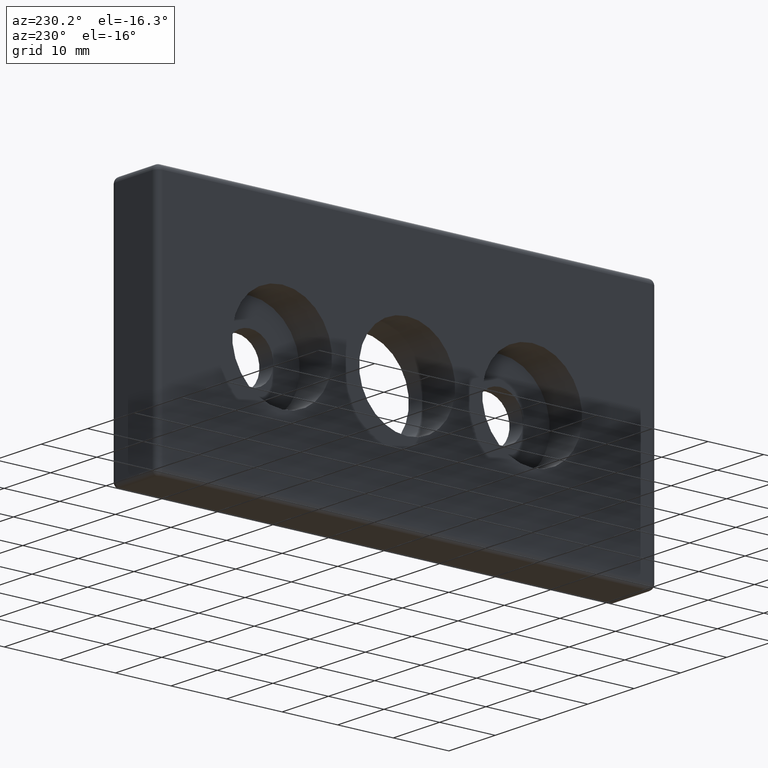
[diagram: clean part render]
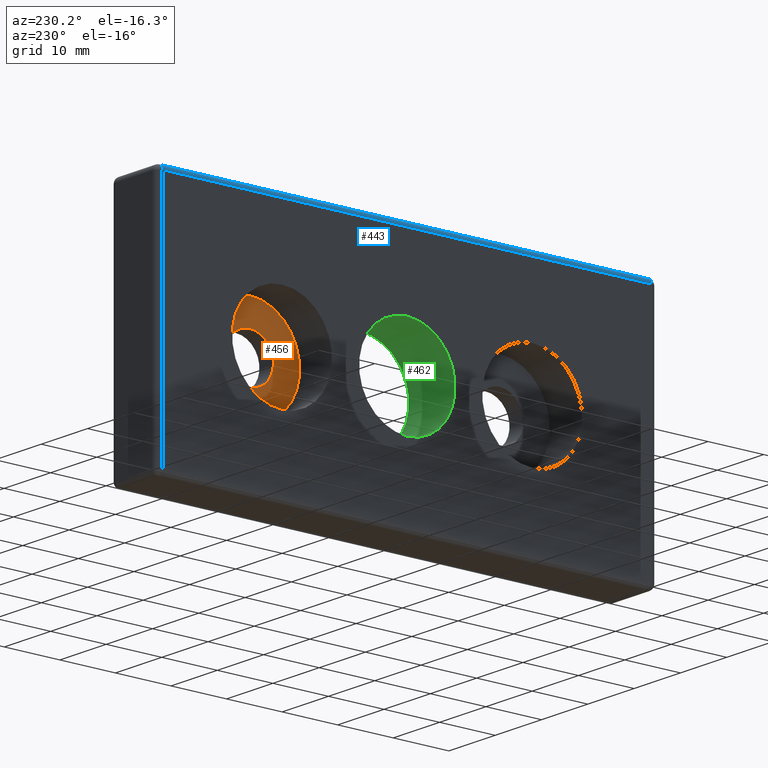
[diagram: same view with three faces highlighted in distinct colors, each labeled with its STEP entity id]
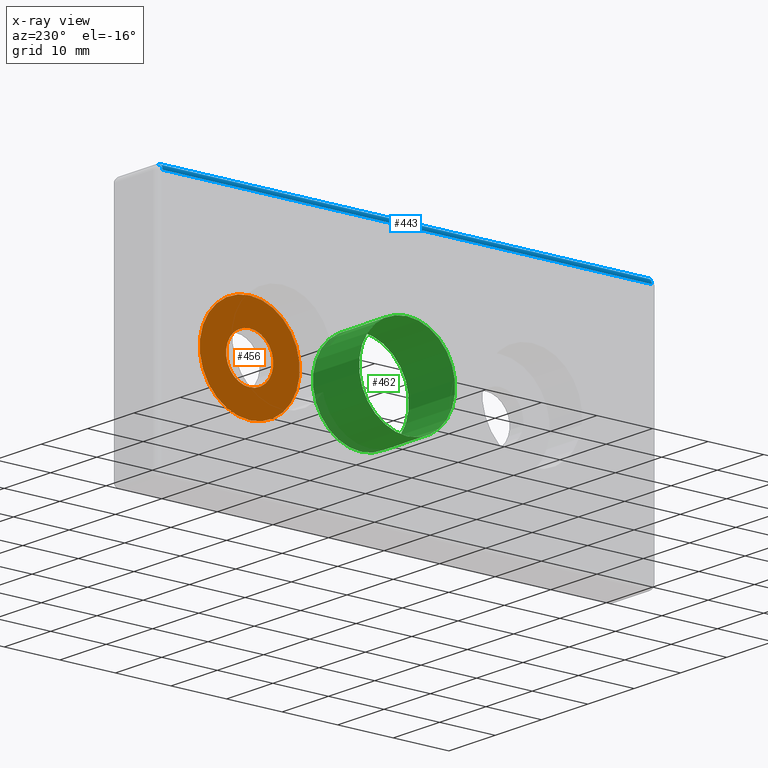
[diagram: x-ray of the same camera — body ghosted, the three highlighted faces saturated]
A machine part, auxiliary view with three faces highlighted in distinct colors.
The next image is the same camera in x-ray (body ghosted, the three faces saturated) — at least one of them is partly hidden behind the body in this view.
Their STEP definitions:

[orange] entity #456 — the highlighted planar face has unit normal (-1, 0, 0).
#21=FACE_BOUND('',#167,.T.);
#34=PLANE('',#521);
#127=FACE_OUTER_BOUND('',#166,.T.);
#166=EDGE_LOOP('',(#408));
#167=EDGE_LOOP('',(#409));
#210=CIRCLE('',#522,9.);
#211=CIRCLE('',#523,4.25);
#244=VERTEX_POINT('',#804);
#245=VERTEX_POINT('',#806);
#302=EDGE_CURVE('',#244,#244,#210,.T.);
#303=EDGE_CURVE('',#245,#245,#211,.T.);
#408=ORIENTED_EDGE('',*,*,#302,.T.);
#409=ORIENTED_EDGE('',*,*,#303,.F.);
#456=ADVANCED_FACE('',(#127,#21),#34,.T.);
#521=AXIS2_PLACEMENT_3D('',#803,#670,#671);
#522=AXIS2_PLACEMENT_3D('',#805,#672,#673);
#523=AXIS2_PLACEMENT_3D('',#807,#674,#675);
#670=DIRECTION('center_axis',(-1.,0.,0.));
#671=DIRECTION('ref_axis',(0.,0.,1.));
#672=DIRECTION('center_axis',(-1.,0.,0.));
#673=DIRECTION('ref_axis',(0.,0.,1.));
#674=DIRECTION('center_axis',(-1.,0.,0.));
#675=DIRECTION('ref_axis',(0.,0.,1.));
#803=CARTESIAN_POINT('Origin',(2.,22.5,0.));
#804=CARTESIAN_POINT('',(2.,22.5,9.));
#805=CARTESIAN_POINT('Origin',(2.,22.5,0.));
#806=CARTESIAN_POINT('',(1.99999999999999,22.5,-4.25));
#807=CARTESIAN_POINT('Origin',(1.99999999999999,22.5,0.));

[blue] entity #443 — the highlighted cylindrical surface (edge-blend (fillet) strip) has radius 1 mm, axis along (0, 1, 0).
#46=LINE('',#765,#70);
#47=LINE('',#766,#71);
#70=VECTOR('',#620,88.);
#71=VECTOR('',#621,88.);
#89=CYLINDRICAL_SURFACE('',#502,1.);
#114=FACE_OUTER_BOUND('',#147,.T.);
#147=EDGE_LOOP('',(#350,#351,#352,#353));
#198=CIRCLE('',#492,1.);
#203=CIRCLE('',#500,1.);
#232=VERTEX_POINT('',#742);
#233=VERTEX_POINT('',#743);
#236=VERTEX_POINT('',#756);
#237=VERTEX_POINT('',#758);
#270=EDGE_CURVE('',#232,#233,#198,.F.);
#279=EDGE_CURVE('',#236,#237,#203,.F.);
#282=EDGE_CURVE('',#233,#236,#46,.T.);
#283=EDGE_CURVE('',#237,#232,#47,.T.);
#350=ORIENTED_EDGE('',*,*,#270,.T.);
#351=ORIENTED_EDGE('',*,*,#282,.T.);
#352=ORIENTED_EDGE('',*,*,#279,.T.);
#353=ORIENTED_EDGE('',*,*,#283,.T.);
#443=ADVANCED_FACE('',(#114),#89,.T.);
#492=AXIS2_PLACEMENT_3D('',#744,#592,#593);
#500=AXIS2_PLACEMENT_3D('',#760,#612,#613);
#502=AXIS2_PLACEMENT_3D('',#764,#618,#619);
#592=DIRECTION('center_axis',(0.,1.,0.));
#593=DIRECTION('ref_axis',(0.,0.,1.));
#612=DIRECTION('center_axis',(0.,-1.,0.));
#613=DIRECTION('ref_axis',(-1.,0.,0.));
#618=DIRECTION('center_axis',(0.,1.,0.));
#619=DIRECTION('ref_axis',(-0.707106781186546,0.,0.707106781186549));
#620=DIRECTION('',(0.,-1.,0.));
#621=DIRECTION('',(0.,1.,0.));
#742=CARTESIAN_POINT('',(-4.,44.,22.5));
#743=CARTESIAN_POINT('',(-5.,44.,21.5));
#744=CARTESIAN_POINT('Origin',(-4.,44.,21.5));
#756=CARTESIAN_POINT('',(-5.,-44.,21.5));
#758=CARTESIAN_POINT('',(-4.,-44.,22.5));
#760=CARTESIAN_POINT('Origin',(-4.,-44.,21.5));
#764=CARTESIAN_POINT('Origin',(-4.,22.5,21.5));
#765=CARTESIAN_POINT('',(-5.,22.5,21.5));
#766=CARTESIAN_POINT('',(-4.,22.5,22.5));

[green] entity #462 — the highlighted cylindrical surface (bore or boss wall) has radius 8.647 mm, axis along (-1, 0, 0).
#27=FACE_BOUND('',#179,.T.);
#100=CYLINDRICAL_SURFACE('',#531,8.647);
#133=FACE_OUTER_BOUND('',#178,.T.);
#178=EDGE_LOOP('',(#420));
#179=EDGE_LOOP('',(#421));
#204=CIRCLE('',#512,8.647);
#207=CIRCLE('',#518,8.647);
#238=VERTEX_POINT('',#788);
#241=VERTEX_POINT('',#797);
#296=EDGE_CURVE('',#238,#238,#204,.T.);
#299=EDGE_CURVE('',#241,#241,#207,.T.);
#420=ORIENTED_EDGE('',*,*,#299,.F.);
#421=ORIENTED_EDGE('',*,*,#296,.F.);
#462=ADVANCED_FACE('',(#133,#27),#100,.F.);
#512=AXIS2_PLACEMENT_3D('',#789,#652,#653);
#518=AXIS2_PLACEMENT_3D('',#798,#664,#665);
#531=AXIS2_PLACEMENT_3D('',#817,#690,#691);
#652=DIRECTION('center_axis',(1.,0.,0.));
#653=DIRECTION('ref_axis',(0.,0.,1.));
#664=DIRECTION('center_axis',(-1.,0.,0.));
#665=DIRECTION('ref_axis',(0.,0.,1.));
#690=DIRECTION('center_axis',(-1.,0.,0.));
#691=DIRECTION('ref_axis',(0.,0.,1.));
#788=CARTESIAN_POINT('',(-5.,0.,8.647));
#789=CARTESIAN_POINT('Origin',(-5.,0.,0.));
#797=CARTESIAN_POINT('',(5.,-1.05895208722272E-15,-8.647));
#798=CARTESIAN_POINT('Origin',(5.,0.,0.));
#817=CARTESIAN_POINT('Origin',(96.1187420807834,0.,0.));